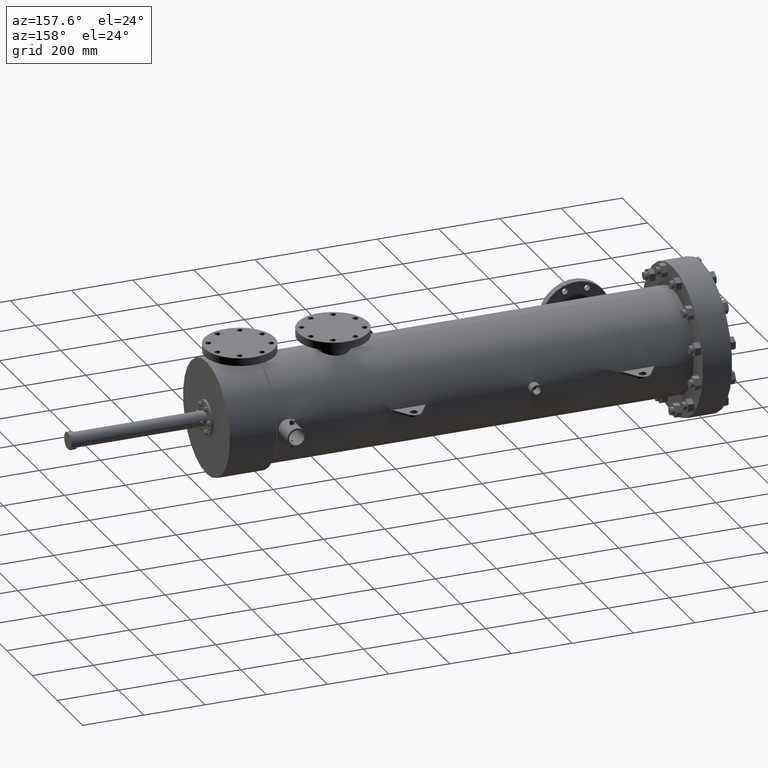
[diagram: clean part render]
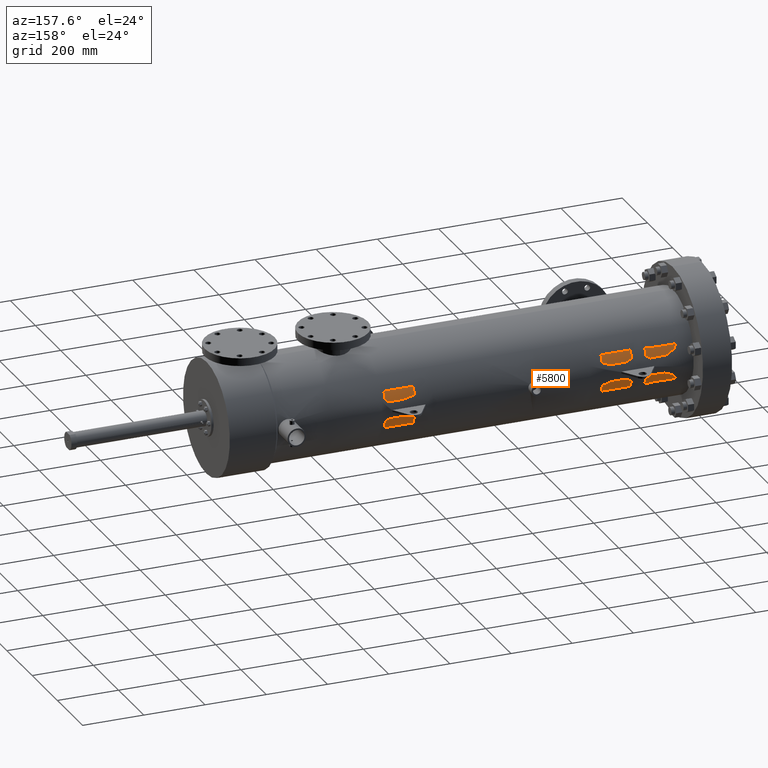
[diagram: same view with one face highlighted and labeled with its STEP entity id]
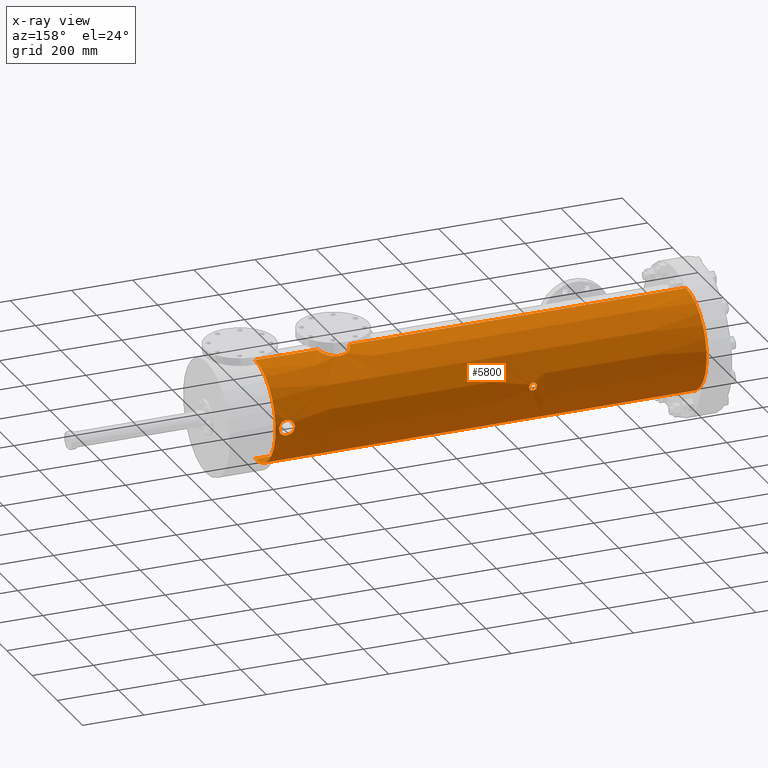
[diagram: x-ray of the same camera — body ghosted, the highlighted face saturated]
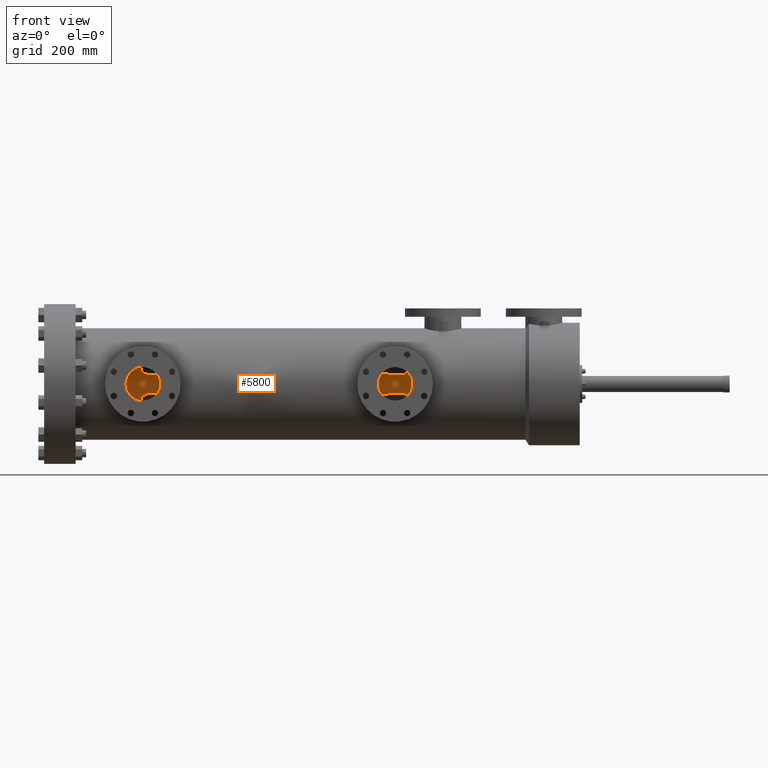
[diagram: same view with one face highlighted and labeled with its STEP entity id]
A machine part, auxiliary view. The second image highlights one B-rep face of the part: STEP entity #5800.
The next image is the same camera in x-ray: the body ghosted, the highlighted face saturated — about 0% of this face is hidden behind the body in this view.
A second angle (front view) of the same face is appended — the face is thin or edge-on in the first view.
In plain terms, the highlighted conical surface has half-angle 0.002 deg.
Its self-contained STEP definition (entity closure, byte-faithful):
#2 = CARTESIAN_POINT ( 'NONE',  ( 57.43100000000000449, 0.1181265535819324974, 6.430221071800417576 ) ) ;
#21 = B_SPLINE_CURVE_WITH_KNOTS ( 'NONE', 3,
 ( #10430, #17358, #2, #20861 ),
 .UNSPECIFIED., .F., .F.,
 ( 4, 4 ),
 ( 0.0000000000000000000, 0.009001243382940534235 ),
 .UNSPECIFIED. ) ;
#54 = CARTESIAN_POINT ( 'NONE',  ( 47.69264231504392626, 1.987193756150324564, 6.115094871244522778 ) ) ;
#228 = CARTESIAN_POINT ( 'NONE',  ( 24.72874181324766596, 6.421677857742370321, 0.3044006487193875454 ) ) ;
#308 = CARTESIAN_POINT ( 'NONE',  ( 24.78101923311398735, 6.425119954579050940, 0.2218760290386605216 ) ) ;
#372 = CARTESIAN_POINT ( 'NONE',  ( 23.93420350997351420, 6.421660857114582122, 0.3050228973294717982 ) ) ;
#403 = B_SPLINE_CURVE_WITH_KNOTS ( 'NONE', 3,
 ( #14458, #14687, #21414, #19893, #696, #4394, #9396, #9542, #16172, #16316, #11011, #16473, #4098, #19826, #14535, #21634, #12871, #16393, #12797, #21484, #625, #4324, #16244, #11156, #11302, #7630, #2450, #5989, #914, #772, #5840, #17920, #7561, #12725, #13013, #21557, #11228, #12944, #19677, #6138, #851, #4168, #2521, #18208, #2375, #9322, #5913, #2593, #7849, #16546, #11668, #13158, #16766, #19970, #2744, #1071, #6213, #16841 ),
 .UNSPECIFIED., .F., .F.,
 ( 4, 2, 2, 2, 2, 2, 2, 2, 2, 2, 2, 2, 2, 2, 2, 2, 2, 2, 2, 2, 2, 2, 2, 2, 2, 2, 2, 2, 4 ),
 ( 0.06302035033654582175, 0.06799215835366131944, 0.07047806236221873522, 0.07296396637077616487, 0.07544987037933359453, 0.07793577438789101031, 0.08290758240500586962, 0.08415053440928457751, 0.08539348641356328540, 0.08787939042212113139, 0.09285119843923683725, 0.09409415044351573942, 0.09533710244779466936, 0.09782300645635250147, 0.1003089104649103475, 0.1015518624691893051, 0.1027948144734682490, 0.1077666224905840797, 0.1102525264991419673, 0.1114954785034209250, 0.1127384305076998827, 0.1177102385248152139, 0.1201961425333730460, 0.1226820465419309059, 0.1276538545590465978, 0.1326256625761622898, 0.1351115665847204550, 0.1375974705932785924, 0.1425692786103948950 ),
 .UNSPECIFIED. ) ;
#451 = CARTESIAN_POINT ( 'NONE',  ( 24.10961920006510795, 6.413153155585102461, 0.4491577637214422825 ) ) ;
#599 = CARTESIAN_POINT ( 'NONE',  ( 24.79989808636656079, 6.426477691507320067, -0.1763352513425968382 ) ) ;
#625 = CARTESIAN_POINT ( 'NONE',  ( 55.10304086691071035, 6.415071156450100176, -0.4439335350391032664 ) ) ;
#675 = CARTESIAN_POINT ( 'NONE',  ( 56.32373294662311025, 6.359819529947519534, 0.9489473343680188133 ) ) ;
#696 = CARTESIAN_POINT ( 'NONE',  ( 55.74200622848043452, 6.357138969515768956, -0.9662949925805127682 ) ) ;
#772 = CARTESIAN_POINT ( 'NONE',  ( 55.00475353482432439, 6.429617579940527072, -0.08211586613344955266 ) ) ;
#851 = CARTESIAN_POINT ( 'NONE',  ( 55.07167913070376386, 6.419582817535125940, 0.3683477978365556904 ) ) ;
#873 = LINE ( 'NONE', #13917, #18710 ) ;
#896 = CARTESIAN_POINT ( 'NONE',  ( 56.13287538781241892, 6.353206677770397270, 0.9918830617671104966 ) ) ;
#914 = CARTESIAN_POINT ( 'NONE',  ( 55.00958995096700477, 6.428869192666581078, -0.1310193594670207573 ) ) ;
#968 = CARTESIAN_POINT ( 'NONE',  ( 24.08150685151646897, 6.414242726608731182, -0.4331877408318161593 ) ) ;
#990 = CONICAL_SURFACE ( 'NONE', #16382, 6.428012777601407990, 4.113735830023026774E-05 ) ;
#1043 = CARTESIAN_POINT ( 'NONE',  ( 23.88308874588128461, 6.425046577234779122, -0.2213242443217743605 ) ) ;
#1046 = CARTESIAN_POINT ( 'NONE',  ( 56.18115526152050165, 6.354454819399848020, -0.9838680216344606322 ) ) ;
#1071 = CARTESIAN_POINT ( 'NONE',  ( 55.87111567895554032, 6.352934841243285113, 0.9936316957955927398 ) ) ;
#1121 = CARTESIAN_POINT ( 'NONE',  ( 23.87603889727037654, 6.425544065384895198, -0.2064087204096069772 ) ) ;
#1123 = CARTESIAN_POINT ( 'NONE',  ( 56.50222760804592070, 6.371587873138588876, -0.8662361582434522367 ) ) ;
#1192 = CARTESIAN_POINT ( 'NONE',  ( 56.91886466560771396, 6.417863441867522667, -0.3984117276432603827 ) ) ;
#1199 = ORIENTED_EDGE ( 'NONE', *, *, #5432, .T. ) ;
#1472 = CARTESIAN_POINT ( 'NONE',  ( 49.42440943912597362, 0.1655364502326437393, 6.427844028906393170 ) ) ;
#1641 = EDGE_CURVE ( 'NONE', #12687, #15163, #22238, .T. ) ;
#1778 = CARTESIAN_POINT ( 'NONE',  ( 47.56230985911464870, 1.999999999999999112, 6.110852822614043056 ) ) ;
#1893 = CARTESIAN_POINT ( 'NONE',  ( 47.10197705295976789, 1.973839980533135474, 6.119347823083942650 ) ) ;
#1965 = CARTESIAN_POINT ( 'NONE',  ( 24.26591447173499461, 6.409701016530751971, 0.4959179416314154487 ) ) ;
#2016 = CARTESIAN_POINT ( 'NONE',  ( 47.43100000000000449, 1.999999999999998890, 6.110847138923364952 ) ) ;
#2121 = CARTESIAN_POINT ( 'NONE',  ( 24.29846261260549412, 6.409450739891478399, 0.4991594482916843489 ) ) ;
#2195 = CARTESIAN_POINT ( 'NONE',  ( 24.58176299612312832, 6.414213698391513674, 0.4342346528529837379 ) ) ;
#2236 = EDGE_CURVE ( 'NONE', #18352, #4724, #873, .T. ) ;
#2270 = CARTESIAN_POINT ( 'NONE',  ( 24.44477914147380915, 6.410367853489034928, 0.4873271457007020691 ) ) ;
#2277 = CARTESIAN_POINT ( 'NONE',  ( 24.72861443945355475, 6.421670029196980600, -0.3045637414429032130 ) ) ;
#2373 = VERTEX_POINT ( 'NONE', #21153 ) ;
#2375 = CARTESIAN_POINT ( 'NONE',  ( 55.20810492022895488, 6.401221232600855515, 0.6095748557894975495 ) ) ;
#2424 = CARTESIAN_POINT ( 'NONE',  ( 56.93798492311849202, 6.420616329065774508, 0.3522445390344411953 ) ) ;
#2450 = CARTESIAN_POINT ( 'NONE',  ( 55.02712965091734532, 6.426184761017403879, -0.2272531321360824197 ) ) ;
#2521 = CARTESIAN_POINT ( 'NONE',  ( 55.13374646408657043, 6.410790873531008849, 0.5012751426848396363 ) ) ;
#2593 = CARTESIAN_POINT ( 'NONE',  ( 55.34070989846797062, 6.386016117464178521, 0.7533772183764348984 ) ) ;
#2621 = CARTESIAN_POINT ( 'NONE',  ( 57.46264661301641752, 3.496765431890256920E-14, -6.430222373658476265 ) ) ;
#2635 = EDGE_LOOP ( 'NONE', ( #15841, #2971 ) ) ;
#2716 = CARTESIAN_POINT ( 'NONE',  ( 24.11036465473647183, 6.413182945525552014, -0.4486213834513267384 ) ) ;
#2744 = CARTESIAN_POINT ( 'NONE',  ( 55.77456070528850773, 6.355890040685255649, 0.9744589839002084641 ) ) ;
#2788 = CARTESIAN_POINT ( 'NONE',  ( 23.83173899116824046, 6.428838886960929422, -0.01629861775823528147 ) ) ;
#2791 = CARTESIAN_POINT ( 'NONE',  ( 56.99988541379875784, 6.429949934452992011, -0.06588201155472872550 ) ) ;
#2861 = CARTESIAN_POINT ( 'NONE',  ( 56.41424683062786016, 6.365322968131707171, -0.9109988912361302038 ) ) ;
#2936 = CARTESIAN_POINT ( 'NONE',  ( 23.84780697330576871, 6.427606651915360736, -0.1299388741762197153 ) ) ;
#2971 = ORIENTED_EDGE ( 'NONE', *, *, #21498, .T. ) ;
#3012 = CARTESIAN_POINT ( 'NONE',  ( 56.66179530543108456, 6.386014276907233445, -0.7538829628584350351 ) ) ;
#3015 = DIRECTION ( 'NONE',  ( 0.0000000000000000000, 0.0000000000000000000, -1.000000000000000000 ) ) ;
#3078 = CARTESIAN_POINT ( 'NONE',  ( 49.40489979791281883, 0.3286407596668806108, 6.421808741575096846 ) ) ;
#3102 = CARTESIAN_POINT ( 'NONE',  ( 46.13605854260597994, 1.524528974438527307, 6.246441659645263655 ) ) ;
#3172 = CARTESIAN_POINT ( 'NONE',  ( 45.43421194455493151, 0.1311072792926363528, 6.428726226909322605 ) ) ;
#3210 = ORIENTED_EDGE ( 'NONE', *, *, #2236, .T. ) ;
#3248 = CARTESIAN_POINT ( 'NONE',  ( 47.16717275862201575, 1.983636127508034752, 6.116171075063932427 ) ) ;
#3324 = CARTESIAN_POINT ( 'NONE',  ( 23.83489271463233905, 6.428591303027426207, 0.06507022085667073241 ) ) ;
#3394 = CARTESIAN_POINT ( 'NONE',  ( 23.88293304722325416, 6.425057501778436375, 0.2210028377557160806 ) ) ;
#3415 = FACE_BOUND ( 'NONE', #15803, .T. ) ;
#3462 = CARTESIAN_POINT ( 'NONE',  ( 56.00151093333343510, 6.351927799667540953, 0.9999999999999993339 ) ) ;
#3463 = VECTOR ( 'NONE', #14539, 39.37007874015748854 ) ;
#3475 = ORIENTED_EDGE ( 'NONE', *, *, #5835, .F. ) ;
#3696 = CARTESIAN_POINT ( 'NONE',  ( 24.83173899112372851, 6.428880024319250985, 6.146665150301079348E-17 ) ) ;
#3772 = CARTESIAN_POINT ( 'NONE',  ( 24.79991360247998600, 6.426478782278499224, 0.1763036026482737995 ) ) ;
#3843 = CARTESIAN_POINT ( 'NONE',  ( 23.98946095830932990, 6.418494716723501803, 0.3648456011965948709 ) ) ;
#3914 = CARTESIAN_POINT ( 'NONE',  ( 24.82769362871717078, 6.428566297837748245, 0.06554992089963317115 ) ) ;
#3934 = B_SPLINE_CURVE_WITH_KNOTS ( 'NONE', 3,
 ( #19129, #10520, #21241, #5887, #21461, #10980, #599, #18041, #12618, #16291, #2277, #3999, #13205, #9672, #21683, #20017, #7970, #11277, #7904, #18112, #7821, #19948, #21607, #9597, #19869, #21752, #9753, #21826, #4371, #6183, #2716, #968, #14811, #13284, #12993, #4444, #7750, #14886, #16597, #16446, #1043, #1121, #9520, #2936, #18253, #6109, #13130, #2788, #11500 ),
 .UNSPECIFIED., .F., .F.,
 ( 4, 2, 2, 2, 2, 2, 2, 2, 2, 2, 2, 2, 2, 2, 2, 2, 1, 2, 2, 2, 2, 2, 2, 2, 4 ),
 ( 0.008896378447338211537, 0.01137923203943028844, 0.01262065883547632689, 0.01386208563152236534, 0.01634493922361444224, 0.01758636601966039048, 0.01882779281570633526, 0.02131064640779822134, 0.02379349999989011089, 0.02503492679593590300, 0.02627635359198169165, 0.02875920718407294976, 0.03000063398011858229, 0.03124206077616421134, 0.03372491436825546945, 0.03496634116430109851, 0.03620776796034672756, 0.03744919475639235662, 0.03869062155243797874, 0.04117347514452900786, 0.04241490194057452590, 0.04365632873662003699, 0.04613918232871119102, 0.04738060912475673681, 0.04862203592080228259 ),
 .UNSPECIFIED. ) ;
#3996 = CARTESIAN_POINT ( 'NONE',  ( 24.83091841154885770, 6.428816021836281536, 0.03298031086222628916 ) ) ;
#3999 = CARTESIAN_POINT ( 'NONE',  ( 24.70779409187761644, 6.420416051052777462, -0.3299268938488671421 ) ) ;
#4098 = CARTESIAN_POINT ( 'NONE',  ( 55.34076825310191339, 6.386009090539821464, -0.7534460500413063810 ) ) ;
#4168 = CARTESIAN_POINT ( 'NONE',  ( 55.10302350131475180, 6.415074070762094571, 0.4438432562807387294 ) ) ;
#4212 = AXIS2_PLACEMENT_3D ( 'NONE', #7306, #14267, #5795 ) ;
#4252 = VERTEX_POINT ( 'NONE', #19944 ) ;
#4297 = CARTESIAN_POINT ( 'NONE',  ( 56.53070004937812598, 6.373897585224675311, 0.8491379493028462511 ) ) ;
#4324 = CARTESIAN_POINT ( 'NONE',  ( 55.07153914322297084, 6.419603059314976434, -0.3679983829252679306 ) ) ;
#4371 = CARTESIAN_POINT ( 'NONE',  ( 24.17091592495754782, 6.411325137095484017, -0.4745712575596421900 ) ) ;
#4394 = CARTESIAN_POINT ( 'NONE',  ( 55.67944936175238979, 6.359997149903064084, -0.9472829823435877650 ) ) ;
#4410 = EDGE_CURVE ( 'NONE', #6126, #5620, #20960, .T. ) ;
#4444 = CARTESIAN_POINT ( 'NONE',  ( 23.98978819975695487, 6.418477127791833325, -0.3651574734961756108 ) ) ;
#4448 = CARTESIAN_POINT ( 'NONE',  ( 56.85162171155026556, 6.408572085969447052, 0.5276332629957394271 ) ) ;
#4520 = CARTESIAN_POINT ( 'NONE',  ( 56.73127954417721241, 6.393732481010645508, -0.6838913829997079752 ) ) ;
#4522 = CARTESIAN_POINT ( 'NONE',  ( 3.750008098508641474, 3.496765431890256920E-14, 0.0000000000000000000 ) ) ;
#4597 = CARTESIAN_POINT ( 'NONE',  ( 56.75334038808645687, 6.396288925112060930, -0.6595620668897453909 ) ) ;
#4598 = DIRECTION ( 'NONE',  ( 0.0000000000000000000, 0.0000000000000000000, -1.000000000000000000 ) ) ;
#4671 = CARTESIAN_POINT ( 'NONE',  ( 56.81451346875361708, 6.403754233175354749, -0.5831680076584075945 ) ) ;
#4724 = VERTEX_POINT ( 'NONE', #2621 ) ;
#4745 = CARTESIAN_POINT ( 'NONE',  ( 56.91215637966067931, 6.416906957185108951, -0.4135166409001506671 ) ) ;
#4760 = CARTESIAN_POINT ( 'NONE',  ( 45.63718953734022676, 0.8868964988379217651, 6.368544970702647134 ) ) ;
#4777 = VERTEX_POINT ( 'NONE', #18235 ) ;
#4813 = CARTESIAN_POINT ( 'NONE',  ( 49.16478442119927905, 1.005505377566858316, 6.351728368706247352 ) ) ;
#4890 = CARTESIAN_POINT ( 'NONE',  ( 49.42687354510530184, 0.1326146080842779407, 6.428609286054466132 ) ) ;
#4959 = CARTESIAN_POINT ( 'NONE',  ( 49.01583693361590122, 1.220396491827941743, 6.313053187761207496 ) ) ;
#5068 = CARTESIAN_POINT ( 'NONE',  ( 23.84776510349549028, 6.427609777468332730, 0.1298446464059272165 ) ) ;
#5124 = ORIENTED_EDGE ( 'NONE', *, *, #14081, .F. ) ;
#5280 = EDGE_CURVE ( 'NONE', #6126, #4252, #8037, .T. ) ;
#5432 = EDGE_CURVE ( 'NONE', #5620, #15163, #17625, .T. ) ;
#5494 = DIRECTION ( 'NONE',  ( 0.9999999991538588429, 5.037873415354562398E-21, 4.113735828862759687E-05 ) ) ;
#5505 = CARTESIAN_POINT ( 'NONE',  ( 24.23367599432687314, 6.410072834438278910, 0.4910983922296019433 ) ) ;
#5588 = CARTESIAN_POINT ( 'NONE',  ( 24.39679709523954543, 6.409639449325879035, 0.4968206248237303502 ) ) ;
#5620 = VERTEX_POINT ( 'NONE', #9228 ) ;
#5795 = DIRECTION ( 'NONE',  ( 0.0000000000000000000, 0.0000000000000000000, -1.000000000000000000 ) ) ;
#5800 = ADVANCED_FACE ( 'NONE', ( #21278, #11829, #3415 ), #990, .F. ) ;
#5835 = EDGE_CURVE ( 'NONE', #2373, #4724, #19924, .T. ) ;
#5840 = CARTESIAN_POINT ( 'NONE',  ( 55.00353774372432270, 6.429806268460669827, -0.06573541260949380960 ) ) ;
#5887 = CARTESIAN_POINT ( 'NONE',  ( 24.81899137523661381, 6.427899849470472660, -0.1133637713632826005 ) ) ;
#5913 = CARTESIAN_POINT ( 'NONE',  ( 55.27165708437095759, 6.393650284282212048, 0.6843772127756947432 ) ) ;
#5948 = CARTESIAN_POINT ( 'NONE',  ( 45.43100000000000449, 3.575505287550089724E-14, 6.429727423500536609 ) ) ;
#5967 = CARTESIAN_POINT ( 'NONE',  ( 56.03426087209017226, 6.351992349778896596, 0.9995988981236025861 ) ) ;
#5989 = CARTESIAN_POINT ( 'NONE',  ( 55.01439679661437054, 6.428127198646273577, -0.1633050846661992794 ) ) ;
#6035 = CARTESIAN_POINT ( 'NONE',  ( 2.000000000603558981, 3.575498973677665130E-14, 6.427940786891214842 ) ) ;
#6109 = CARTESIAN_POINT ( 'NONE',  ( 23.83575151971450268, 6.428528024049568579, -0.06531661370691815849 ) ) ;
#6126 = VERTEX_POINT ( 'NONE', #7773 ) ;
#6138 = CARTESIAN_POINT ( 'NONE',  ( 55.06576645814615034, 6.420442298217805543, 0.3530617549332298322 ) ) ;
#6142 = EDGE_CURVE ( 'NONE', #4777, #10135, #403, .T. ) ;
#6183 = CARTESIAN_POINT ( 'NONE',  ( 24.12532727308392921, 6.412682730316545232, -0.4557024104719763491 ) ) ;
#6186 = CARTESIAN_POINT ( 'NONE',  ( 56.89919658105125677, 6.415065848289644101, 0.4418429810606855357 ) ) ;
#6213 = CARTESIAN_POINT ( 'NONE',  ( 55.93603846832357362, 6.351925073130066934, 0.9999999999999988898 ) ) ;
#6263 = CARTESIAN_POINT ( 'NONE',  ( 56.79511612630950879, 6.401311794650429654, -0.6093088137452686848 ) ) ;
#6402 = CARTESIAN_POINT ( 'NONE',  ( 48.65190578897127693, 1.589531027305387978, 6.230745764434383993 ) ) ;
#6404 = CARTESIAN_POINT ( 'NONE',  ( 56.11591152403038052, 6.352941598613766949, -0.9935708344311487972 ) ) ;
#6481 = CARTESIAN_POINT ( 'NONE',  ( 56.26148108763455724, 6.356931907961425487, -0.9678374952376137541 ) ) ;
#6502 = CARTESIAN_POINT ( 'NONE',  ( 45.44719125836613216, 0.2624014742121710264, 6.424707180228209857 ) ) ;
#6521 = B_SPLINE_CURVE_WITH_KNOTS ( 'NONE', 3,
 ( #12775, #9443, #5967, #19729, #14668, #896, #9374, #12923, #675, #7681, #18184, #21542, #11209, #21685, #4297, #13064, #11136, #16367, #21610, #18115, #14814, #4448, #7908, #6186, #20019, #2424, #9675, #9895, #20099, #13287, #13133, #15029, #2791, #14889, #16890, #13363, #20308, #1192, #4745, #13208, #8203, #14963, #8053, #4671, #6263, #16599, #4597, #4520, #11431, #3012, #16745, #18484, #1123, #6557, #8128, #2861, #15098, #21976, #6481, #1046, #20162, #18333, #6404, #16818, #9832, #20239 ),
 .UNSPECIFIED., .F., .F.,
 ( 4, 2, 2, 2, 2, 2, 2, 2, 2, 2, 2, 2, 2, 2, 2, 2, 2, 2, 2, 2, 2, 2, 2, 2, 2, 2, 2, 2, 2, 2, 2, 2, 4 ),
 ( 0.1425692786103948950, 0.1438114368032742951, 0.1450535949961536675, 0.1475379113819118015, 0.1525065441534287081, 0.1537487023463083857, 0.1549908605391880911, 0.1574751769249480293, 0.1599594933107079675, 0.1624438096964679334, 0.1674124424679878376, 0.1698967588537479700, 0.1723810752395081303, 0.1748653916252682627, 0.1773497080110283952, 0.1823183407825486602, 0.1848026571683087926, 0.1872869735540689251, 0.1922556063255893288, 0.1934977645184695061, 0.1947399227113496556, 0.1972242390971096770, 0.1997085554828696985, 0.2009507136757495149, 0.2021928718686292759, 0.2071615046401480420, 0.2096458210259076749, 0.2108879792187877966, 0.2121301374116679184, 0.2170987701831865180, 0.2183409283760656683, 0.2195830865689448463, 0.2220674029547031747 ),
 .UNSPECIFIED. ) ;
#6552 = CARTESIAN_POINT ( 'NONE',  ( 48.99556567044491118, 1.246274951800361963, 6.307990234760610271 ) ) ;
#6557 = CARTESIAN_POINT ( 'NONE',  ( 56.45871584008357047, 6.368363665037270138, -0.8895134854455265527 ) ) ;
#6624 = CARTESIAN_POINT ( 'NONE',  ( 49.28970520849909320, 0.7391172892576287623, 6.387337057603694745 ) ) ;
#6642 = CARTESIAN_POINT ( 'NONE',  ( 45.84166369974185784, 1.221027425061196325, 6.313693744957928011 ) ) ;
#6696 = CARTESIAN_POINT ( 'NONE',  ( 48.48776577746053107, 1.698327476630175026, 6.201532100538393877 ) ) ;
#6717 = CARTESIAN_POINT ( 'NONE',  ( 46.37154044342331360, 1.697573672784118415, 6.201736385054518408 ) ) ;
#6904 = ORIENTED_EDGE ( 'NONE', *, *, #20228, .T. ) ;
#7015 = DIRECTION ( 'NONE',  ( 0.9999999991538588429, 0.0000000000000000000, -4.113735828862759687E-05 ) ) ;
#7099 = CARTESIAN_POINT ( 'NONE',  ( 24.80548353968917041, 6.426888514667839836, 0.1607284108785028975 ) ) ;
#7248 = CARTESIAN_POINT ( 'NONE',  ( 24.46065795080235361, 6.410668758453522464, 0.4833745787413645800 ) ) ;
#7306 = CARTESIAN_POINT ( 'NONE',  ( 2.000000000603558981, 3.496765431890256920E-14, 0.0000000000000000000 ) ) ;
#7322 = CARTESIAN_POINT ( 'NONE',  ( 24.62262718386664062, 6.415981492044195100, 0.4070036775261491324 ) ) ;
#7490 = ORIENTED_EDGE ( 'NONE', *, *, #6142, .T. ) ;
#7561 = CARTESIAN_POINT ( 'NONE',  ( 55.00150684485790720, 6.430121764701772769, -0.01623421507527771784 ) ) ;
#7590 = CIRCLE ( 'NONE', #4212, 6.427940786891214842 ) ;
#7630 = CARTESIAN_POINT ( 'NONE',  ( 55.03505565641598452, 6.424984271134815295, -0.2589154536620742464 ) ) ;
#7681 = CARTESIAN_POINT ( 'NONE',  ( 56.39969767597402495, 6.364394717707852145, 0.9174518092595165264 ) ) ;
#7750 = CARTESIAN_POINT ( 'NONE',  ( 23.95491265647429202, 6.420396695666728881, -0.3302774746958043184 ) ) ;
#7773 = CARTESIAN_POINT ( 'NONE',  ( 49.43099999999999739, 3.575570683584247618E-14, 6.429891972933829969 ) ) ;
#7821 = CARTESIAN_POINT ( 'NONE',  ( 24.44533479351768079, 6.410377488870141249, -0.4872009002484360973 ) ) ;
#7849 = CARTESIAN_POINT ( 'NONE',  ( 55.39111694028454025, 6.380929164755057670, 0.7948417716311592107 ) ) ;
#7904 = CARTESIAN_POINT ( 'NONE',  ( 24.49284223627611112, 6.411398189198068032, -0.4736193542490994557 ) ) ;
#7908 = CARTESIAN_POINT ( 'NONE',  ( 56.86848266292772536, 6.410838794316476630, 0.4994244308355743622 ) ) ;
#7970 = CARTESIAN_POINT ( 'NONE',  ( 24.55336169677455160, 6.413155444004934758, -0.4493828530795502263 ) ) ;
#8037 = LINE ( 'NONE', #13017, #3463 ) ;
#8053 = CARTESIAN_POINT ( 'NONE',  ( 56.85069296315643328, 6.408449454944574519, -0.5291010564926348358 ) ) ;
#8128 = CARTESIAN_POINT ( 'NONE',  ( 56.44394899394386300, 6.367319115519121553, -0.8969495321768138352 ) ) ;
#8203 = CARTESIAN_POINT ( 'NONE',  ( 56.89065457480304389, 6.413889226596233506, -0.4579204804576403887 ) ) ;
#8217 = CARTESIAN_POINT ( 'NONE',  ( 45.92382207435584007, 1.321146676176877754, 6.293264297507082716 ) ) ;
#8268 = CARTESIAN_POINT ( 'NONE',  ( 48.75204279023948573, 1.507189485814607322, 6.251426030665930611 ) ) ;
#8337 = CARTESIAN_POINT ( 'NONE',  ( 49.43017107597894011, 0.06642929547904238841, 6.429633961601301628 ) ) ;
#8493 = CARTESIAN_POINT ( 'NONE',  ( 47.95086874822532508, 1.931536046607372326, 6.132859686405361721 ) ) ;
#8523 = CARTESIAN_POINT ( 'NONE',  ( 23.85728423997899839, 6.426891624513825896, 0.1611007131671476356 ) ) ;
#8835 = CARTESIAN_POINT ( 'NONE',  ( 24.20204844475366102, 6.410673901414760678, 0.4831647661080109568 ) ) ;
#8912 = CARTESIAN_POINT ( 'NONE',  ( 24.00164862484357187, 6.417854568383958735, 0.3759146135026886215 ) ) ;
#8986 = CARTESIAN_POINT ( 'NONE',  ( 24.82288970413661033, 6.428195214903090537, 0.09780071490993209882 ) ) ;
#9061 = CARTESIAN_POINT ( 'NONE',  ( 24.63593107166282081, 6.416600822281580463, 0.3971621860534290671 ) ) ;
#9228 = CARTESIAN_POINT ( 'NONE',  ( 47.43100000000000449, 1.999999999999998890, 6.110847138923364952 ) ) ;
#9322 = CARTESIAN_POINT ( 'NONE',  ( 55.24973056623279888, 6.396196987971943138, 0.6602279046535122209 ) ) ;
#9327 = CARTESIAN_POINT ( 'NONE',  ( 46.51347038132789891, 1.777415082252380429, 6.179241114550046099 ) ) ;
#9374 = CARTESIAN_POINT ( 'NONE',  ( 56.16529054975275415, 6.353965179622345083, 0.9870368452652498181 ) ) ;
#9396 = CARTESIAN_POINT ( 'NONE',  ( 55.64875929508449559, 6.361629558774771986, -0.9362844046104114026 ) ) ;
#9443 = CARTESIAN_POINT ( 'NONE',  ( 56.01786859608711211, 6.351928480866586568, 0.9999999999999995559 ) ) ;
#9520 = CARTESIAN_POINT ( 'NONE',  ( 23.85727813793344154, 6.426891972198967018, -0.1611069226107442465 ) ) ;
#9542 = CARTESIAN_POINT ( 'NONE',  ( 55.58854285618019730, 6.365250010857685048, -0.9113284654044008226 ) ) ;
#9597 = CARTESIAN_POINT ( 'NONE',  ( 24.31563014485236351, 6.409385120323273455, -0.5000077592603325849 ) ) ;
#9671 = CARTESIAN_POINT ( 'NONE',  ( 46.78406683293538748, 1.897047118267896959, 6.143786084984044216 ) ) ;
#9672 = CARTESIAN_POINT ( 'NONE',  ( 24.66228087492277510, 6.417876433345032439, -0.3765672741402190660 ) ) ;
#9675 = CARTESIAN_POINT ( 'NONE',  ( 56.94898119628836497, 6.422234767200178496, 0.3215206165053006160 ) ) ;
#9676 = CARTESIAN_POINT ( 'NONE',  ( 57.46264661301641752, 3.496765431890256920E-14, 0.0000000000000000000 ) ) ;
#9753 = CARTESIAN_POINT ( 'NONE',  ( 24.25013084107757066, 6.409882573708488351, -0.4935649213038580396 ) ) ;
#9832 = CARTESIAN_POINT ( 'NONE',  ( 56.03413151201166897, 6.351929158119989260, -0.9999999999999996669 ) ) ;
#9892 = CARTESIAN_POINT ( 'NONE',  ( 49.30165812657291724, 0.7083296439872315275, 6.390828565403581685 ) ) ;
#9895 = CARTESIAN_POINT ( 'NONE',  ( 56.96801039967704128, 6.425070489228929205, 0.2587550725674183094 ) ) ;
#9991 = CARTESIAN_POINT ( 'NONE',  ( 47.29944433492937605, 1.996774951424422184, 6.111899923278181213 ) ) ;
#10035 = CARTESIAN_POINT ( 'NONE',  ( 48.43165833030664658, 1.731979512660796638, 6.192215588783164470 ) ) ;
#10135 = VERTEX_POINT ( 'NONE', #3462 ) ;
#10199 = CARTESIAN_POINT ( 'NONE',  ( 46.21159170584193987, 1.586597396966247020, 6.231078036909257989 ) ) ;
#10430 = CARTESIAN_POINT ( 'NONE',  ( 57.46264661301641752, 0.3543796607457261327, 6.420449737420878655 ) ) ;
#10513 = EDGE_LOOP ( 'NONE', ( #18489, #5124, #3210, #3475, #6904, #16773, #17174, #1199 ) ) ;
#10520 = CARTESIAN_POINT ( 'NONE',  ( 24.83173899112373917, 6.428880024319251874, -0.03290153757088706832 ) ) ;
#10593 = CARTESIAN_POINT ( 'NONE',  ( 23.90690052154933198, 6.423427000713227031, 0.2641602381238534747 ) ) ;
#10665 = CARTESIAN_POINT ( 'NONE',  ( 24.66137925620533977, 6.417858634732102274, 0.3763082772561626710 ) ) ;
#10827 = CARTESIAN_POINT ( 'NONE',  ( 24.49217838032130246, 6.411381387988858371, 0.4738462661384211794 ) ) ;
#10903 = CARTESIAN_POINT ( 'NONE',  ( 24.69676700639510258, 6.419777100488626154, 0.3420876704485786290 ) ) ;
#10980 = CARTESIAN_POINT ( 'NONE',  ( 24.80545890182744628, 6.426886670406863011, -0.1608144503379551338 ) ) ;
#11011 = CARTESIAN_POINT ( 'NONE',  ( 55.47272523975437508, 6.373820343119139586, -0.8493871704852484772 ) ) ;
#11136 = CARTESIAN_POINT ( 'NONE',  ( 56.61176605897281178, 6.381150862118619038, 0.7928833812589689556 ) ) ;
#11156 = CARTESIAN_POINT ( 'NONE',  ( 55.05446805349628647, 6.422098238486678490, -0.3215296357043186948 ) ) ;
#11209 = CARTESIAN_POINT ( 'NONE',  ( 56.45923489748274449, 6.368401074091440961, 0.8892456483299353565 ) ) ;
#11228 = CARTESIAN_POINT ( 'NONE',  ( 55.03508673639342419, 6.424979485357504849, 0.2590599985679444273 ) ) ;
#11277 = CARTESIAN_POINT ( 'NONE',  ( 24.50821670605019165, 6.411805157634085539, -0.4681036308324342810 ) ) ;
#11302 = CARTESIAN_POINT ( 'NONE',  ( 55.04931778464409575, 6.422860166504726465, -0.3059353872890994697 ) ) ;
#11324 = CARTESIAN_POINT ( 'NONE',  ( 2.000000000603558981, 3.496765431890256920E-14, -6.427940786891214842 ) ) ;
#11364 = AXIS2_PLACEMENT_3D ( 'NONE', #9676, #21755, #4598 ) ;
#11431 = CARTESIAN_POINT ( 'NONE',  ( 56.71988502585423220, 6.392440444269980482, -0.6958508094790920584 ) ) ;
#11500 = CARTESIAN_POINT ( 'NONE',  ( 23.83173899116824757, 6.428838886960929422, 4.243579719036338586E-22 ) ) ;
#11644 = CARTESIAN_POINT ( 'NONE',  ( 47.98260623945581926, 1.922708403181184966, 6.135636672260057267 ) ) ;
#11668 = CARTESIAN_POINT ( 'NONE',  ( 55.55842882441332620, 6.367060837252525474, 0.8988460545117608058 ) ) ;
#11804 = CARTESIAN_POINT ( 'NONE',  ( 46.06276565054525207, 1.459112636676191954, 6.262046936488031790 ) ) ;
#11829 = FACE_BOUND ( 'NONE', #2635, .T. ) ;
#11927 = CARTESIAN_POINT ( 'NONE',  ( 49.07387653394407323, 1.141061911964107001, 6.327879371973525124 ) ) ;
#12001 = CARTESIAN_POINT ( 'NONE',  ( 47.43100000000000449, 1.999999999999998890, 6.110847138923364952 ) ) ;
#12074 = CARTESIAN_POINT ( 'NONE',  ( 47.88668521446010118, 1.947677077969405923, 6.127749952351648766 ) ) ;
#12320 = CARTESIAN_POINT ( 'NONE',  ( 24.73847765555509426, 6.422289606489183456, 0.2912546442362896060 ) ) ;
#12470 = CARTESIAN_POINT ( 'NONE',  ( 23.95485215666993284, 6.420400884052258839, 0.3301856628709649577 ) ) ;
#12541 = CARTESIAN_POINT ( 'NONE',  ( 24.31497697605203712, 6.409386486066892985, 0.4999899066182131868 ) ) ;
#12618 = CARTESIAN_POINT ( 'NONE',  ( 24.76578462721361618, 6.424058634333261075, -0.2503568689816288440 ) ) ;
#12687 = VERTEX_POINT ( 'NONE', #6035 ) ;
#12725 = CARTESIAN_POINT ( 'NONE',  ( 55.00152744338484467, 6.430118562106174274, 0.06618645738004151624 ) ) ;
#12730 = CARTESIAN_POINT ( 'NONE',  ( 46.54267650012175750, 1.792194424491198479, 6.174968662203998981 ) ) ;
#12775 = CARTESIAN_POINT ( 'NONE',  ( 56.00151093333343510, 6.351927799667540953, 0.9999999999999993339 ) ) ;
#12797 = CARTESIAN_POINT ( 'NONE',  ( 55.18813344402200016, 6.403734622759986728, -0.5826484073952721277 ) ) ;
#12871 = CARTESIAN_POINT ( 'NONE',  ( 55.23893679327246531, 6.397499135703442086, -0.6471102484101290964 ) ) ;
#12923 = CARTESIAN_POINT ( 'NONE',  ( 56.26132112102639837, 6.356927783732084336, 0.9678639641155568629 ) ) ;
#12944 = CARTESIAN_POINT ( 'NONE',  ( 55.04946449604459957, 6.422838396107907855, 0.3063976730785080149 ) ) ;
#12965 = VERTEX_POINT ( 'NONE', #15682 ) ;
#12993 = CARTESIAN_POINT ( 'NONE',  ( 24.00205272494004305, 6.417833975156427506, -0.3762639543251231622 ) ) ;
#13013 = CARTESIAN_POINT ( 'NONE',  ( 55.00800174659936204, 6.429102802178653597, 0.1311712129044006192 ) ) ;
#13017 = CARTESIAN_POINT ( 'NONE',  ( 3.750008098508641474, 3.575485884619935017E-14, 6.428012777601407990 ) ) ;
#13064 = CARTESIAN_POINT ( 'NONE',  ( 56.58521951372766523, 6.378657684520047333, 0.8126257875926508056 ) ) ;
#13130 = CARTESIAN_POINT ( 'NONE',  ( 23.83253394929128177, 6.428776940920752914, -0.03262143513061285111 ) ) ;
#13133 = CARTESIAN_POINT ( 'NONE',  ( 57.00153265754006782, 6.430206783111681368, 0.06504581941559221814 ) ) ;
#13158 = CARTESIAN_POINT ( 'NONE',  ( 55.64872228173324231, 6.361631658801066180, 0.9362700804475233562 ) ) ;
#13205 = CARTESIAN_POINT ( 'NONE',  ( 24.69682550993192649, 6.419780602437130668, -0.3420190725750468785 ) ) ;
#13208 = CARTESIAN_POINT ( 'NONE',  ( 56.89804814502391395, 6.414919428670897261, -0.4432743724513605321 ) ) ;
#13209 = DIRECTION ( 'NONE',  ( 1.000000000000000000, 0.0000000000000000000, 0.0000000000000000000 ) ) ;
#13284 = CARTESIAN_POINT ( 'NONE',  ( 24.02735174605772173, 6.416585141254608438, -0.3970088191422952439 ) ) ;
#13287 = CARTESIAN_POINT ( 'NONE',  ( 56.99520419028627316, 6.429212992894363765, 0.1299427434372088519 ) ) ;
#13363 = CARTESIAN_POINT ( 'NONE',  ( 56.96927856801027445, 6.425255843244877418, -0.2601782445019978351 ) ) ;
#13377 = CARTESIAN_POINT ( 'NONE',  ( 45.43100000000001160, 0.06552288296640595977, 6.429727423500536609 ) ) ;
#13454 = CARTESIAN_POINT ( 'NONE',  ( 46.26372623533845285, 1.625325470447176013, 6.221057035977357152 ) ) ;
#13579 = CARTESIAN_POINT ( 'NONE',  ( 49.32404463917188053, 0.6461228251400434885, 6.397418055326023811 ) ) ;
#13598 = CARTESIAN_POINT ( 'NONE',  ( 45.45704691536941056, 0.3284001993531718289, 6.421662360480936194 ) ) ;
#13656 = CARTESIAN_POINT ( 'NONE',  ( 47.85432724045063679, 1.954963242707256743, 6.125425800814737087 ) ) ;
#13766 = CARTESIAN_POINT ( 'NONE',  ( 23.87596539369736348, 6.425549301297516003, 0.2062416435253004998 ) ) ;
#13784 = B_SPLINE_CURVE_WITH_KNOTS ( 'NONE', 3,
 ( #13995, #17208, #3324, #5068, #8523, #13766, #3394, #21161, #10593, #372, #12470, #3843, #8912, #14361, #15928, #21008, #451, #17663, #14285, #8835, #5505, #1965, #2121, #12541, #17589, #5588, #2270, #7248, #10827, #14207, #20934, #2195, #7322, #9061, #10665, #19347, #10903, #19205, #228, #12320, #14066, #308, #3772, #7099, #19438, #8986, #3914, #3996, #16004, #3696 ),
 .UNSPECIFIED., .F., .F.,
 ( 4, 2, 2, 2, 2, 2, 2, 2, 2, 2, 1, 2, 2, 2, 2, 2, 2, 2, 2, 2, 2, 2, 2, 1, 2, 4 ),
 ( 0.04862203592080228259, 0.05110381394005592687, 0.05358559195930957114, 0.05482648096893645573, 0.05606736997856334725, 0.05854914799781711643, 0.05979003700744412592, 0.06103092601707112846, 0.06351270403632541806, 0.06475359304595242060, 0.06599448205557942315, 0.06723537106520641182, 0.06847626007483340049, 0.07095803809408707252, 0.07219892710371389466, 0.07343981611334071680, 0.07592159413259438883, 0.07716248314222134974, 0.07840337215184832453, 0.07964426116147529933, 0.08088515017110226024, 0.08336692819035619595, 0.08460781719998308747, 0.08584870620960999288, 0.08708959521923689828, 0.08833048422886380369 ),
 .UNSPECIFIED. ) ;
#13917 = CARTESIAN_POINT ( 'NONE',  ( 3.750008098508641474, 3.496765431890256920E-14, -6.428012777601407990 ) ) ;
#13995 = CARTESIAN_POINT ( 'NONE',  ( 23.83173899116824757, 6.428838886960929422, 4.243579719036338586E-22 ) ) ;
#14066 = CARTESIAN_POINT ( 'NONE',  ( 24.76563276237811806, 6.424048633682419407, 0.2505965502771291264 ) ) ;
#14072 = CARTESIAN_POINT ( 'NONE',  ( 46.42722004911938427, 1.731093791001893756, 6.192436276955255003 ) ) ;
#14081 = EDGE_CURVE ( 'NONE', #18352, #12687, #7590, .T. ) ;
#14207 = CARTESIAN_POINT ( 'NONE',  ( 24.50772721748967697, 6.411791555096736595, 0.4682897171361088962 ) ) ;
#14267 = DIRECTION ( 'NONE',  ( 1.000000000000000000, 0.0000000000000000000, 0.0000000000000000000 ) ) ;
#14285 = CARTESIAN_POINT ( 'NONE',  ( 24.17073097458112585, 6.411382631620092809, 0.4736499209686409473 ) ) ;
#14361 = CARTESIAN_POINT ( 'NONE',  ( 24.02711152268642891, 6.416596369857653137, 0.3968293739511435936 ) ) ;
#14458 = CARTESIAN_POINT ( 'NONE',  ( 56.00151093333343510, 6.351927799667540953, -0.9999999999999993339 ) ) ;
#14535 = CARTESIAN_POINT ( 'NONE',  ( 55.27176594185314684, 6.393669417264062460, -0.6839162454716015693 ) ) ;
#14539 = DIRECTION ( 'NONE',  ( 0.9999999991538588429, 5.037873415354562398E-21, 4.113735828862759687E-05 ) ) ;
#14668 = CARTESIAN_POINT ( 'NONE',  ( 56.08362466532473434, 6.352440745803476396, 0.9967594955899456988 ) ) ;
#14687 = CARTESIAN_POINT ( 'NONE',  ( 55.93622808307932814, 6.351925081026390529, -0.9999999999999995559 ) ) ;
#14811 = CARTESIAN_POINT ( 'NONE',  ( 24.05354602615870974, 6.415366693342422266, -0.4164164795016195852 ) ) ;
#14814 = CARTESIAN_POINT ( 'NONE',  ( 56.79676926044644603, 6.401447385035382354, 0.6098401224889716810 ) ) ;
#14886 = CARTESIAN_POINT ( 'NONE',  ( 23.93425536455092484, 6.421657853058201582, -0.3050741824894595000 ) ) ;
#14889 = CARTESIAN_POINT ( 'NONE',  ( 56.99335772417778401, 6.428939349488873134, -0.1316510014495250180 ) ) ;
#14963 = CARTESIAN_POINT ( 'NONE',  ( 56.86747514028315464, 6.410702350810319139, -0.5011749381558161520 ) ) ;
#15029 = CARTESIAN_POINT ( 'NONE',  ( 57.00149998799838613, 6.430201701129094616, -0.03302260479523830283 ) ) ;
#15098 = CARTESIAN_POINT ( 'NONE',  ( 56.39927236424995272, 6.364368334413745387, -0.9176343653687233370 ) ) ;
#15163 = VERTEX_POINT ( 'NONE', #5948 ) ;
#15175 = CARTESIAN_POINT ( 'NONE',  ( 49.33442774421415322, 0.6148519776912499957, 6.400501008986116958 ) ) ;
#15195 = CARTESIAN_POINT ( 'NONE',  ( 45.43100000000000449, 3.575505287550089724E-14, 6.429727423500536609 ) ) ;
#15256 = CARTESIAN_POINT ( 'NONE',  ( 45.49586869197140260, 0.5221270972847199543, 6.409801473108036163 ) ) ;
#15307 = CARTESIAN_POINT ( 'NONE',  ( 49.05500045822956423, 1.167774899151870827, 6.323000130619778503 ) ) ;
#15577 = CARTESIAN_POINT ( 'NONE',  ( 23.83173899116824757, 6.428838886960929422, 4.243579719036338586E-22 ) ) ;
#15682 = CARTESIAN_POINT ( 'NONE',  ( 24.83173899112372851, 6.428880024319250985, 6.146665150301079348E-17 ) ) ;
#15803 = EDGE_LOOP ( 'NONE', ( #21862, #7490 ) ) ;
#15841 = ORIENTED_EDGE ( 'NONE', *, *, #19525, .T. ) ;
#15928 = CARTESIAN_POINT ( 'NONE',  ( 24.04025934960709421, 6.415984477250352924, 0.4065776310543294803 ) ) ;
#16004 = CARTESIAN_POINT ( 'NONE',  ( 24.83173899112372851, 6.428880024319250097, 0.01644364230802172408 ) ) ;
#16172 = CARTESIAN_POINT ( 'NONE',  ( 55.55901645439261216, 6.367238132017006613, -0.8973711916306621461 ) ) ;
#16244 = CARTESIAN_POINT ( 'NONE',  ( 55.06557562466972655, 6.420470103258681505, -0.3525572590132728390 ) ) ;
#16291 = CARTESIAN_POINT ( 'NONE',  ( 24.73848840477334932, 6.422290221531082643, -0.2912446712062178311 ) ) ;
#16316 = CARTESIAN_POINT ( 'NONE',  ( 55.50114796304019649, 6.371518857644338674, -0.8664371399132793083 ) ) ;
#16361 = EDGE_CURVE ( 'NONE', #10135, #4777, #6521, .T. ) ;
#16367 = CARTESIAN_POINT ( 'NONE',  ( 56.66240100111957645, 6.386194287402624958, 0.7511988371579245705 ) ) ;
#16382 = AXIS2_PLACEMENT_3D ( 'NONE', #4522, #13209, #3015 ) ;
#16393 = CARTESIAN_POINT ( 'NONE',  ( 55.20760733312989998, 6.401282669712081486, -0.6089343514143698011 ) ) ;
#16446 = CARTESIAN_POINT ( 'NONE',  ( 23.89863249702692016, 6.423980536542881481, -0.2503801678499423256 ) ) ;
#16473 = CARTESIAN_POINT ( 'NONE',  ( 55.39105037922524133, 6.380939087120514941, -0.7947511637948502239 ) ) ;
#16546 = CARTESIAN_POINT ( 'NONE',  ( 55.50085302019803635, 6.371372895962190697, 0.8681566233663446930 ) ) ;
#16597 = CARTESIAN_POINT ( 'NONE',  ( 23.90706086468195934, 6.423416455292673355, -0.2644132399190578520 ) ) ;
#16599 = CARTESIAN_POINT ( 'NONE',  ( 56.76403314260026889, 6.397556136087398038, -0.6471680528127100596 ) ) ;
#16670 = CARTESIAN_POINT ( 'NONE',  ( 46.90908728486440538, 1.935150792961660926, 6.131729076384655031 ) ) ;
#16739 = CARTESIAN_POINT ( 'NONE',  ( 49.41461881680893242, 0.2637999677979530611, 6.424811842502622383 ) ) ;
#16745 = CARTESIAN_POINT ( 'NONE',  ( 56.61145046070727460, 6.380942520343456437, -0.7951190265231754539 ) ) ;
#16766 = CARTESIAN_POINT ( 'NONE',  ( 55.67947987733899851, 6.359994833537705006, 0.9472989641576611275 ) ) ;
#16773 = ORIENTED_EDGE ( 'NONE', *, *, #5280, .F. ) ;
#16818 = CARTESIAN_POINT ( 'NONE',  ( 56.06680870197115496, 6.352181812431513919, -0.9984078295701634964 ) ) ;
#16841 = CARTESIAN_POINT ( 'NONE',  ( 56.00151093333343510, 6.351927799667540953, 0.9999999999999993339 ) ) ;
#16887 = CARTESIAN_POINT ( 'NONE',  ( 49.22650600357530948, 0.8907462608534241211, 6.369058171947439284 ) ) ;
#16890 = CARTESIAN_POINT ( 'NONE',  ( 56.98849539552215759, 6.428188483565945077, -0.1640987501722221686 ) ) ;
#16909 = CARTESIAN_POINT ( 'NONE',  ( 45.53400715003940036, 0.6468784511535697890, 6.398260166582647734 ) ) ;
#16957 = CARTESIAN_POINT ( 'NONE',  ( 49.36318901070359999, 0.5205440947474466729, 6.409094667505706333 ) ) ;
#17026 = CARTESIAN_POINT ( 'NONE',  ( 48.93326617160639103, 1.321916911203629752, 6.292728315854710708 ) ) ;
#17121 = CARTESIAN_POINT ( 'NONE',  ( 46.11132643419110622, 1.503175505801360723, 6.251618239224374207 ) ) ;
#17174 = ORIENTED_EDGE ( 'NONE', *, *, #4410, .T. ) ;
#17208 = CARTESIAN_POINT ( 'NONE',  ( 23.83173899116824757, 6.428838886960929422, 0.03258311438535895638 ) ) ;
#17358 = CARTESIAN_POINT ( 'NONE',  ( 57.44137926932690164, 0.2362531071638293012, 6.426968910377170552 ) ) ;
#17496 = CARTESIAN_POINT ( 'NONE',  ( 3.750008098508641474, 3.575485884619935017E-14, 6.428012777601407990 ) ) ;
#17589 = CARTESIAN_POINT ( 'NONE',  ( 24.36435152547823790, 6.409386182814523991, 0.5000199097552048277 ) ) ;
#17625 = B_SPLINE_CURVE_WITH_KNOTS ( 'NONE', 3,
 ( #2016, #18580, #9991, #3248, #1893, #16670, #9671, #19177, #21805, #12730, #9327, #14072, #6717, #13454, #10199, #3102, #17121, #11804, #20544, #8217, #6642, #22281, #20324, #4760, #18800, #16909, #15256, #13598, #6502, #3172, #13377, #15195 ),
 .UNSPECIFIED., .F., .F.,
 ( 4, 2, 2, 2, 2, 2, 2, 2, 2, 2, 2, 2, 2, 2, 2, 4 ),
 ( 0.04670106430979112377, 0.05169401357613086223, 0.05668696284247060069, 0.06667286137515072986, 0.06916933600832046725, 0.07166581064149019076, 0.07665875990783023453, 0.08165170917417027829, 0.08414818380734029324, 0.08664465844051030818, 0.09663055697319036796, 0.1016235062395302036, 0.1066164555058700530, 0.1166023540385500157, 0.1215953033048899901, 0.1265882525712299644 ),
 .UNSPECIFIED. ) ;
#17663 = CARTESIAN_POINT ( 'NONE',  ( 24.15514216660010760, 6.411793577182724135, 0.4680636026427207885 ) ) ;
#17920 = CARTESIAN_POINT ( 'NONE',  ( 55.00191354338636529, 6.430058494717245665, -0.03281294958617313184 ) ) ;
#18041 = CARTESIAN_POINT ( 'NONE',  ( 24.78112785135869700, 6.425127716035866854, -0.2216255616996540001 ) ) ;
#18112 = CARTESIAN_POINT ( 'NONE',  ( 24.46142531661286768, 6.410684394854087920, -0.4831676782419233596 ) ) ;
#18115 = CARTESIAN_POINT ( 'NONE',  ( 56.75543356919543214, 6.396381843667700018, 0.6601754077979916646 ) ) ;
#18184 = CARTESIAN_POINT ( 'NONE',  ( 56.41481329026672853, 6.365359685932045153, 0.9107426563083904636 ) ) ;
#18208 = CARTESIAN_POINT ( 'NONE',  ( 55.18835866271015078, 6.403705754347324586, 0.5829720151691960561 ) ) ;
#18235 = CARTESIAN_POINT ( 'NONE',  ( 56.00151093333343510, 6.351927799667540953, -0.9999999999999993339 ) ) ;
#18253 = CARTESIAN_POINT ( 'NONE',  ( 23.83819076746059906, 6.428339791990629770, -0.08172348566094789213 ) ) ;
#18333 = CARTESIAN_POINT ( 'NONE',  ( 56.13234000205872576, 6.353259497398730637, -0.9915421208980716994 ) ) ;
#18352 = VERTEX_POINT ( 'NONE', #11324 ) ;
#18480 = CARTESIAN_POINT ( 'NONE',  ( 48.25836344423353097, 1.822005144791654763, 6.166349550174863303 ) ) ;
#18484 = CARTESIAN_POINT ( 'NONE',  ( 56.53024900975199074, 6.373860948517603653, -0.8494093064555318096 ) ) ;
#18489 = ORIENTED_EDGE ( 'NONE', *, *, #1641, .F. ) ;
#18580 = CARTESIAN_POINT ( 'NONE',  ( 47.36535167178380590, 1.999999999999998668, 6.110844297363763111 ) ) ;
#18633 = CARTESIAN_POINT ( 'NONE',  ( 48.88955933581530644, 1.369962851268049508, 6.282405998370784062 ) ) ;
#18710 = VECTOR ( 'NONE', #7015, 39.37007874015748854 ) ;
#18779 = CARTESIAN_POINT ( 'NONE',  ( 48.40327135917689105, 1.748070138893716763, 6.187687226284441344 ) ) ;
#18800 = CARTESIAN_POINT ( 'NONE',  ( 45.60912396793932544, 0.8276630501870712031, 6.376530934508581439 ) ) ;
#18998 = VECTOR ( 'NONE', #5494, 39.37007874015748854 ) ;
#19129 = CARTESIAN_POINT ( 'NONE',  ( 24.83173899112372851, 6.428880024319250985, 6.146665150301079348E-17 ) ) ;
#19177 = CARTESIAN_POINT ( 'NONE',  ( 46.63222861322919499, 1.833860999339849585, 6.162723267914924641 ) ) ;
#19205 = CARTESIAN_POINT ( 'NONE',  ( 24.70785965047975097, 6.420419843978729446, 0.3298548852447327207 ) ) ;
#19347 = CARTESIAN_POINT ( 'NONE',  ( 24.67354485590268709, 6.418497607247629411, 0.3652919065727640580 ) ) ;
#19438 = CARTESIAN_POINT ( 'NONE',  ( 24.81497500420004698, 6.427595518338695690, 0.1294236262261681258 ) ) ;
#19525 = EDGE_CURVE ( 'NONE', #22104, #12965, #13784, .T. ) ;
#19677 = CARTESIAN_POINT ( 'NONE',  ( 55.05466558239651675, 6.422069123555290915, 0.3221089987087972228 ) ) ;
#19729 = CARTESIAN_POINT ( 'NONE',  ( 56.06711578947421515, 6.352248077009742033, 0.9979812215013034171 ) ) ;
#19826 = CARTESIAN_POINT ( 'NONE',  ( 55.28305040699243733, 6.392390834566593405, -0.6957591803759956006 ) ) ;
#19869 = CARTESIAN_POINT ( 'NONE',  ( 24.29915419575245750, 6.409446868176912560, -0.4992095107585475811 ) ) ;
#19893 = CARTESIAN_POINT ( 'NONE',  ( 55.77393369248071764, 6.355911280981349165, -0.9743206611162122943 ) ) ;
#19924 = CIRCLE ( 'NONE', #11364, 6.430222373658475377 ) ;
#19944 = CARTESIAN_POINT ( 'NONE',  ( 57.43100000000000449, 3.573382203350059013E-14, 6.430221071800417576 ) ) ;
#19948 = CARTESIAN_POINT ( 'NONE',  ( 24.39710083923664641, 6.409641712126355806, -0.4967924344818209770 ) ) ;
#19970 = CARTESIAN_POINT ( 'NONE',  ( 55.74235065637525821, 6.357124160486063325, 0.9663929218315014946 ) ) ;
#20017 = CARTESIAN_POINT ( 'NONE',  ( 24.58216339705382225, 6.414228433093028592, -0.4340256230318301212 ) ) ;
#20019 = CARTESIAN_POINT ( 'NONE',  ( 56.91309266328181593, 6.417031914586708297, 0.4124057449258214936 ) ) ;
#20099 = CARTESIAN_POINT ( 'NONE',  ( 56.97606208487175650, 6.426290728918073292, 0.2265566251662146924 ) ) ;
#20162 = CARTESIAN_POINT ( 'NONE',  ( 56.16496717997374333, 6.354016462185205327, -0.9866884402752632566 ) ) ;
#20228 = EDGE_CURVE ( 'NONE', #2373, #4252, #21, .T. ) ;
#20235 = CARTESIAN_POINT ( 'NONE',  ( 48.13819685363643686, 1.871925646682563338, 6.151373856802095474 ) ) ;
#20239 = CARTESIAN_POINT ( 'NONE',  ( 56.00151093333343510, 6.351927799667540953, -0.9999999999999993339 ) ) ;
#20305 = CARTESIAN_POINT ( 'NONE',  ( 49.43099999999999739, 0.03310659589347191706, 6.429891972933828193 ) ) ;
#20308 = CARTESIAN_POINT ( 'NONE',  ( 56.95033799250708739, 6.422393689194341171, -0.3225579161019608287 ) ) ;
#20324 = CARTESIAN_POINT ( 'NONE',  ( 45.69945258923617359, 1.003037855654371979, 6.351291084582007862 ) ) ;
#20379 = CARTESIAN_POINT ( 'NONE',  ( 48.51555708559145330, 1.680717753703076855, 6.206333118025452400 ) ) ;
#20544 = CARTESIAN_POINT ( 'NONE',  ( 46.03904945636070067, 1.436501670389703111, 6.267275216629922596 ) ) ;
#20861 = CARTESIAN_POINT ( 'NONE',  ( 57.43100000000000449, 3.573382203350059013E-14, 6.430221071800417576 ) ) ;
#20934 = CARTESIAN_POINT ( 'NONE',  ( 24.55303608682262606, 6.413143673086362462, 0.4495509486809187716 ) ) ;
#20960 = B_SPLINE_CURVE_WITH_KNOTS ( 'NONE', 3,
 ( #22121, #20305, #8337, #4890, #1472, #16739, #3078, #22044, #16957, #15175, #13579, #9892, #6624, #16887, #4813, #11927, #15307, #4959, #6552, #17026, #18633, #8268, #6402, #20379, #6696, #10035, #18779, #22256, #18480, #20235, #21972, #11644, #8493, #12074, #13656, #54, #1778, #12001 ),
 .UNSPECIFIED., .F., .F.,
 ( 4, 2, 2, 2, 2, 2, 2, 2, 2, 2, 2, 2, 2, 2, 2, 2, 2, 2, 4 ),
 ( 0.2864027871616335319, 0.2888995128306045546, 0.2913962384995755772, 0.2963896898375176225, 0.3013831411754597234, 0.3038798668444308571, 0.3063765925134019907, 0.3163634951892865810, 0.3188602208582579367, 0.3213569465272292369, 0.3263503978651719484, 0.3363373005410573158, 0.3388340262100285050, 0.3413307518789997497, 0.3463242032169415729, 0.3513176545548833962, 0.3538143802238546409, 0.3563111058928258856, 0.3662980085687101983 ),
 .UNSPECIFIED. ) ;
#21008 = CARTESIAN_POINT ( 'NONE',  ( 24.08091356403044614, 6.414224928965372108, 0.4337621597150476682 ) ) ;
#21153 = CARTESIAN_POINT ( 'NONE',  ( 57.46264661301641752, 0.3543796607457261327, 6.420449737420878655 ) ) ;
#21161 = CARTESIAN_POINT ( 'NONE',  ( 23.89838202140204970, 6.423997475133959689, 0.2499415259031950998 ) ) ;
#21241 = CARTESIAN_POINT ( 'NONE',  ( 24.82852281574727371, 6.428627434576164923, -0.06535100244168470796 ) ) ;
#21278 = FACE_OUTER_BOUND ( 'NONE', #10513, .T. ) ;
#21414 = CARTESIAN_POINT ( 'NONE',  ( 55.87117034584612441, 6.352929106385568403, -0.9936699332181295752 ) ) ;
#21461 = CARTESIAN_POINT ( 'NONE',  ( 24.81502407097810803, 6.427599182292786928, -0.1292570030025670669 ) ) ;
#21484 = CARTESIAN_POINT ( 'NONE',  ( 55.13381731591120172, 6.410782385961685037, -0.5013543789775566362 ) ) ;
#21498 = EDGE_CURVE ( 'NONE', #12965, #22104, #3934, .T. ) ;
#21542 = CARTESIAN_POINT ( 'NONE',  ( 56.44456797118379399, 6.367362120476889764, 0.8966445703162075898 ) ) ;
#21557 = CARTESIAN_POINT ( 'NONE',  ( 55.02712987359655727, 6.426184717952726722, 0.2272622895049107861 ) ) ;
#21607 = CARTESIAN_POINT ( 'NONE',  ( 24.36467387937081952, 6.409388973276435308, -0.4999843099560193349 ) ) ;
#21610 = CARTESIAN_POINT ( 'NONE',  ( 56.68652832806667163, 6.388746116081905235, 0.7292522858342215253 ) ) ;
#21634 = CARTESIAN_POINT ( 'NONE',  ( 55.24972297831408952, 6.396221879549683464, -0.6596090160833004701 ) ) ;
#21683 = CARTESIAN_POINT ( 'NONE',  ( 24.63707300126518973, 6.416609066328651245, -0.3973182185440166103 ) ) ;
#21685 = CARTESIAN_POINT ( 'NONE',  ( 56.50261201464918059, 6.371618516070401306, 0.8660103394448265268 ) ) ;
#21752 = CARTESIAN_POINT ( 'NONE',  ( 24.26633385388154807, 6.409696393693666394, -0.4959778952151454035 ) ) ;
#21755 = DIRECTION ( 'NONE',  ( -1.000000000000000000, -0.0000000000000000000, -0.0000000000000000000 ) ) ;
#21805 = CARTESIAN_POINT ( 'NONE',  ( 46.60202371843467972, 1.820405949291367564, 6.166713258236401707 ) ) ;
#21826 = CARTESIAN_POINT ( 'NONE',  ( 24.20212374671144318, 6.410611623534673065, -0.4840090652808581306 ) ) ;
#21862 = ORIENTED_EDGE ( 'NONE', *, *, #16361, .T. ) ;
#21972 = CARTESIAN_POINT ( 'NONE',  ( 48.07678560777592480, 1.894008747886355648, 6.144585169990779860 ) ) ;
#21976 = CARTESIAN_POINT ( 'NONE',  ( 56.32379237622885171, 6.359826222303478716, -0.9488974773133955765 ) ) ;
#22044 = CARTESIAN_POINT ( 'NONE',  ( 49.37918490725383691, 0.4570128316174760230, 6.413950259426471234 ) ) ;
#22104 = VERTEX_POINT ( 'NONE', #15577 ) ;
#22121 = CARTESIAN_POINT ( 'NONE',  ( 49.43099999999999739, 3.575570683584247618E-14, 6.429891972933829969 ) ) ;
#22238 = LINE ( 'NONE', #17496, #18998 ) ;
#22256 = CARTESIAN_POINT ( 'NONE',  ( 48.31711863756918035, 1.794167490961419587, 6.174536891534766703 ) ) ;
#22281 = CARTESIAN_POINT ( 'NONE',  ( 45.73315065105896338, 1.059024102803100664, 6.342162778014922786 ) ) ;